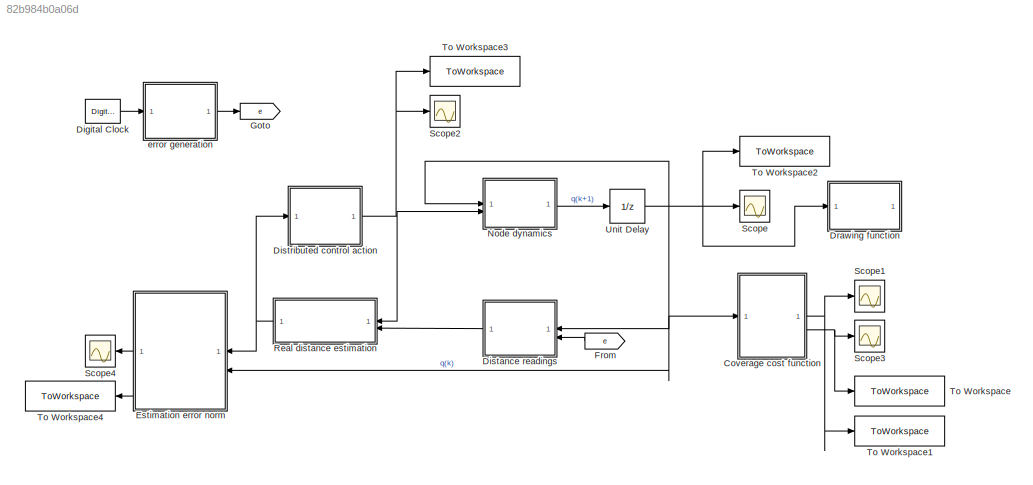
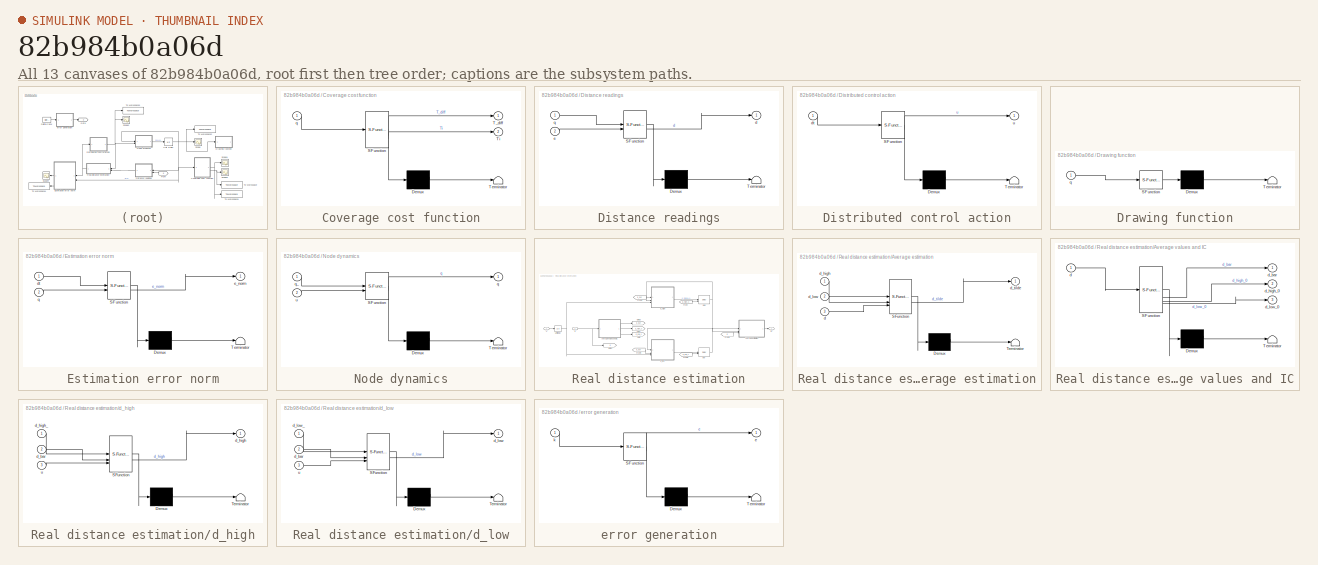
[diagram: thumbnail index - all 13 canvases of the model, root first then tree order]
MODEL slx_82b984b0a06d
KIND model
CONFIG AbsTol = auto
CONFIG EnableMultiTasking = off
CONFIG FixedStep = 1
CONFIG MaxStep = auto
CONFIG MinStep = auto
CONFIG RelTol = 1e-3
CONFIG SampleTimeConstraint = Unconstrained
CONFIG SolverName = FixedStepAuto
CONFIG StartTime = 0.0
CONFIG StopTime = Tf
BLOCK [SubSystem] Coverage cost function
  ErrorFcn = Stateflow.Translate.translate
  PermitHierarchicalResolution = ExplicitOnly
  SFBlockType = MATLAB Function
  TreatAsAtomicUnit = on
BLOCK [Demux] Coverage cost function/ Demux 
  Outputs = 1
BLOCK [S-Function] Coverage cost function/ SFunction 
  EnableBusSupport = on
  FunctionName = sf_sfun
  Parameters = T_star,lambda,n
  PortCounts = [1 3]
  SFcnIsStateOwnerBlock = off
  SFunctionDeploymentMode = off
  Tag = Stateflow S-Function 9
BLOCK [Terminator] Coverage cost function/ Terminator 
BLOCK [Outport] Coverage cost function/T_diff
BLOCK [Outport] Coverage cost function/Ti
  Port = 2
BLOCK [Inport] Coverage cost function/q
BLOCK [DigitalClock] Digital Clock
BLOCK [SubSystem] Distance readings
  ErrorFcn = Stateflow.Translate.translate
  PermitHierarchicalResolution = ExplicitOnly
  SFBlockType = MATLAB Function
  TreatAsAtomicUnit = on
BLOCK [Demux] Distance readings/ Demux 
  Outputs = 1
BLOCK [S-Function] Distance readings/ SFunction 
  EnableBusSupport = on
  FunctionName = sf_sfun
  Parameters = n,update_step
  PortCounts = [2 2]
  SFcnIsStateOwnerBlock = off
  SFunctionDeploymentMode = off
  Tag = Stateflow S-Function 4
BLOCK [Terminator] Distance readings/ Terminator 
BLOCK [Outport] Distance readings/d
BLOCK [Inport] Distance readings/e
  Port = 2
BLOCK [Inport] Distance readings/q
BLOCK [SubSystem] Distributed control action
  ErrorFcn = Stateflow.Translate.translate
  PermitHierarchicalResolution = ExplicitOnly
  SFBlockType = MATLAB Function
  TreatAsAtomicUnit = on
BLOCK [Demux] Distributed control action/ Demux 
  Outputs = 1
BLOCK [S-Function] Distributed control action/ SFunction 
  EnableBusSupport = on
  FunctionName = sf_sfun
  Parameters = eta,lambda,n,order_preservation
  PortCounts = [1 2]
  SFcnIsStateOwnerBlock = off
  SFunctionDeploymentMode = off
  Tag = Stateflow S-Function 1
BLOCK [Terminator] Distributed control action/ Terminator 
BLOCK [Inport] Distributed control action/dt
BLOCK [Outport] Distributed control action/u
BLOCK [SubSystem] Drawing function
  ErrorFcn = Stateflow.Translate.translate
  PermitHierarchicalResolution = ExplicitOnly
  SFBlockType = MATLAB Function
  TreatAsAtomicUnit = on
BLOCK [Demux] Drawing function/ Demux 
  Outputs = 1
BLOCK [S-Function] Drawing function/ SFunction 
  EnableBusSupport = on
  FunctionName = sf_sfun
  PortCounts = [1 1]
  SFcnIsStateOwnerBlock = off
  SFunctionDeploymentMode = off
  Tag = Stateflow S-Function 10
BLOCK [Terminator] Drawing function/ Terminator 
BLOCK [Inport] Drawing function/q
BLOCK [SubSystem] Estimation error norm
  ErrorFcn = Stateflow.Translate.translate
  PermitHierarchicalResolution = ExplicitOnly
  SFBlockType = MATLAB Function
  TreatAsAtomicUnit = on
BLOCK [Demux] Estimation error norm/ Demux 
  Outputs = 1
BLOCK [S-Function] Estimation error norm/ SFunction 
  EnableBusSupport = on
  FunctionName = sf_sfun
  Parameters = n
  PortCounts = [2 2]
  SFcnIsStateOwnerBlock = off
  SFunctionDeploymentMode = off
  Tag = Stateflow S-Function 5
BLOCK [Terminator] Estimation error norm/ Terminator 
BLOCK [Inport] Estimation error norm/dt
BLOCK [Outport] Estimation error norm/e_norm
BLOCK [Inport] Estimation error norm/q
  Port = 2
BLOCK [From] From
  GotoTag = e
  NameLocation = top
BLOCK [Goto] Goto
  GotoTag = e
BLOCK [SubSystem] Node dynamics
  ErrorFcn = Stateflow.Translate.translate
  PermitHierarchicalResolution = ExplicitOnly
  SFBlockType = MATLAB Function
  TreatAsAtomicUnit = on
BLOCK [Demux] Node dynamics/ Demux 
  Outputs = 1
BLOCK [S-Function] Node dynamics/ SFunction 
  EnableBusSupport = on
  FunctionName = sf_sfun
  PortCounts = [2 2]
  SFcnIsStateOwnerBlock = off
  SFunctionDeploymentMode = off
  Tag = Stateflow S-Function 2
BLOCK [Terminator] Node dynamics/ Terminator 
BLOCK [Outport] Node dynamics/q
BLOCK [Inport] Node dynamics/q_
BLOCK [Inport] Node dynamics/u
  Port = 2
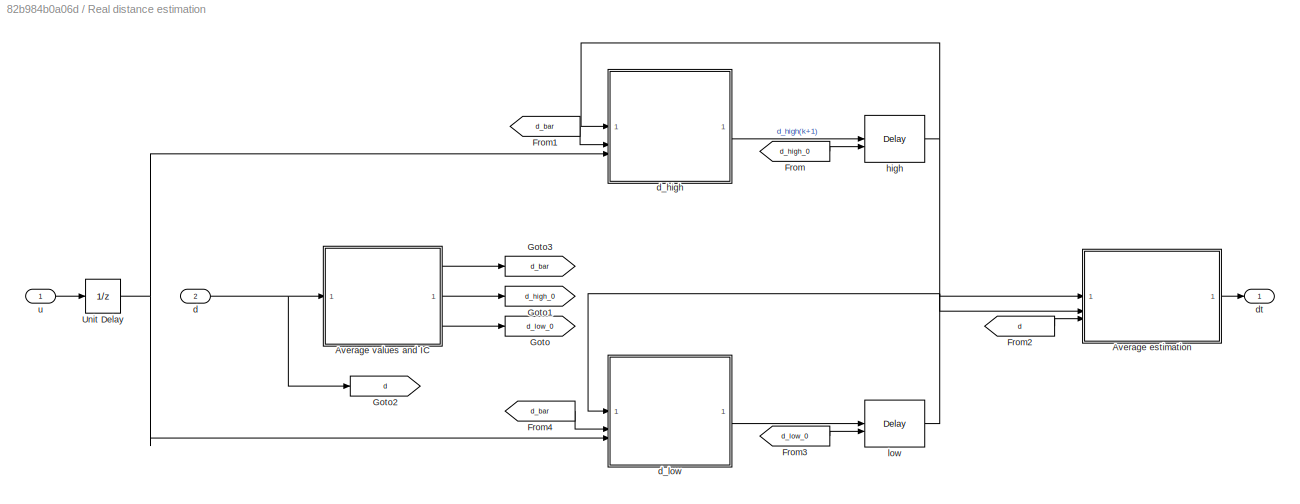
BLOCK [SubSystem] Real distance estimation
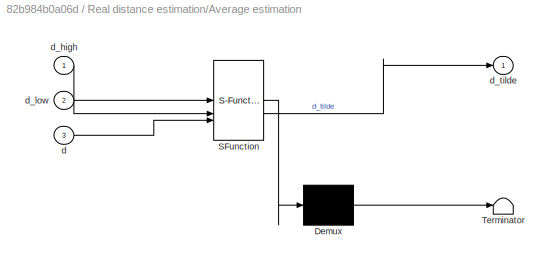
BLOCK [SubSystem] Real distance estimation/Average estimation
  ErrorFcn = Stateflow.Translate.translate
  PermitHierarchicalResolution = ExplicitOnly
  SFBlockType = MATLAB Function
  TreatAsAtomicUnit = on
BLOCK [Demux] Real distance estimation/Average estimation/ Demux 
  Outputs = 1
BLOCK [S-Function] Real distance estimation/Average estimation/ SFunction 
  EnableBusSupport = on
  FunctionName = sf_sfun
  Parameters = n
  PortCounts = [3 2]
  SFcnIsStateOwnerBlock = off
  SFunctionDeploymentMode = off
  Tag = Stateflow S-Function 13
BLOCK [Terminator] Real distance estimation/Average estimation/ Terminator 
BLOCK [Inport] Real distance estimation/Average estimation/d
  Port = 3
BLOCK [Inport] Real distance estimation/Average estimation/d_high
BLOCK [Inport] Real distance estimation/Average estimation/d_low
  Port = 2
BLOCK [Outport] Real distance estimation/Average estimation/d_tilde
BLOCK [SubSystem] Real distance estimation/Average values and IC
  ErrorFcn = Stateflow.Translate.translate
  PermitHierarchicalResolution = ExplicitOnly
  SFBlockType = MATLAB Function
  TreatAsAtomicUnit = on
BLOCK [Demux] Real distance estimation/Average values and IC/ Demux 
  Outputs = 1
BLOCK [S-Function] Real distance estimation/Average values and IC/ SFunction 
  EnableBusSupport = on
  FunctionName = sf_sfun
  Parameters = delta_bar
  PortCounts = [1 4]
  SFcnIsStateOwnerBlock = off
  SFunctionDeploymentMode = off
  Tag = Stateflow S-Function 14
BLOCK [Terminator] Real distance estimation/Average values and IC/ Terminator 
BLOCK [Inport] Real distance estimation/Average values and IC/d
BLOCK [Outport] Real distance estimation/Average values and IC/d_bar
BLOCK [Outport] Real distance estimation/Average values and IC/d_high_0
  Port = 2
BLOCK [Outport] Real distance estimation/Average values and IC/d_low_0
  Port = 3
BLOCK [From] Real distance estimation/From
  GotoTag = d_high_0
BLOCK [From] Real distance estimation/From1
  GotoTag = d_bar
BLOCK [From] Real distance estimation/From2
  GotoTag = d
BLOCK [From] Real distance estimation/From3
  GotoTag = d_low_0
BLOCK [From] Real distance estimation/From4
  GotoTag = d_bar
BLOCK [Goto] Real distance estimation/Goto
  GotoTag = d_low_0
BLOCK [Goto] Real distance estimation/Goto1
  GotoTag = d_high_0
BLOCK [Goto] Real distance estimation/Goto2
  GotoTag = d
BLOCK [Goto] Real distance estimation/Goto3
  GotoTag = d_bar
BLOCK [UnitDelay] Real distance estimation/Unit Delay
  HasFrameUpgradeWarning = on
  SampleTime = -1
BLOCK [Inport] Real distance estimation/d
  Port = 2
BLOCK [SubSystem] Real distance estimation/d_high
  ErrorFcn = Stateflow.Translate.translate
  PermitHierarchicalResolution = ExplicitOnly
  SFBlockType = MATLAB Function
  TreatAsAtomicUnit = on
BLOCK [Demux] Real distance estimation/d_high/ Demux 
  Outputs = 1
BLOCK [S-Function] Real distance estimation/d_high/ SFunction 
  EnableBusSupport = on
  FunctionName = sf_sfun
  Parameters = delta_bar,n
  PortCounts = [3 2]
  SFcnIsStateOwnerBlock = off
  SFunctionDeploymentMode = off
  Tag = Stateflow S-Function 16
BLOCK [Terminator] Real distance estimation/d_high/ Terminator 
BLOCK [Inport] Real distance estimation/d_high/d_bar
  Port = 2
BLOCK [Outport] Real distance estimation/d_high/d_high
BLOCK [Inport] Real distance estimation/d_high/d_high_
BLOCK [Inport] Real distance estimation/d_high/u
  Port = 3
BLOCK [SubSystem] Real distance estimation/d_low
  ErrorFcn = Stateflow.Translate.translate
  PermitHierarchicalResolution = ExplicitOnly
  SFBlockType = MATLAB Function
  TreatAsAtomicUnit = on
BLOCK [Demux] Real distance estimation/d_low/ Demux 
  Outputs = 1
BLOCK [S-Function] Real distance estimation/d_low/ SFunction 
  EnableBusSupport = on
  FunctionName = sf_sfun
  Parameters = delta_bar,n
  PortCounts = [3 2]
  SFcnIsStateOwnerBlock = off
  SFunctionDeploymentMode = off
  Tag = Stateflow S-Function 17
BLOCK [Terminator] Real distance estimation/d_low/ Terminator 
BLOCK [Inport] Real distance estimation/d_low/d_bar
  Port = 2
BLOCK [Outport] Real distance estimation/d_low/d_low
BLOCK [Inport] Real distance estimation/d_low/d_low_
BLOCK [Inport] Real distance estimation/d_low/u
  Port = 3
BLOCK [Outport] Real distance estimation/dt
BLOCK [Delay] Real distance estimation/high
  DelayLength = 1
  InitialConditionSource = Input port
  InputPortMap = u0,p4
BLOCK [Delay] Real distance estimation/low
  DelayLength = 1
  InitialConditionSource = Input port
  InputPortMap = u0,p4
BLOCK [Inport] Real distance estimation/u
BLOCK [Scope] Scope
  Floating = off
  NumInputPorts = 1
  ScopeSpecificationString = Simulink.scopes.TimeScopeBlockCfg('CurrentConfiguration', extmgr.ConfigurationSet(extmgr.Configuration('Core','General UI',true),extmgr.Configuration('Core','Source UI',true),extmgr.Configuration('Sources','WiredSimulink',true),extmgr.Configuration('Visuals','Time Domain',true,'SerializedDisplays',{struct('MinYLimReal','-2.67478','MaxYLimReal','17.37039','YLabelReal','','MinYLimMag','0.00000','Max...<+1644ch>
BLOCK [Scope] Scope1
  Floating = off
  NumInputPorts = 1
  ScopeSpecificationString = Simulink.scopes.TimeScopeBlockCfg('CurrentConfiguration', extmgr.ConfigurationSet(extmgr.Configuration('Core','General UI',true),extmgr.Configuration('Core','Source UI',true),extmgr.Configuration('Sources','WiredSimulink',true,'DataLoggingVariableName','ScopeData1'),extmgr.Configuration('Visuals','Time Domain',true,'SerializedDisplays',{struct('MinYLimReal','-0.05549','MaxYLimReal','0.4967','YLabe...<+1546ch>
BLOCK [Scope] Scope2
  Floating = off
  NumInputPorts = 1
  ScopeSpecificationString = Simulink.scopes.TimeScopeBlockCfg('CurrentConfiguration', extmgr.ConfigurationSet(extmgr.Configuration('Core','General UI',true),extmgr.Configuration('Core','Source UI',true),extmgr.Configuration('Sources','WiredSimulink',true,'DataLoggingVariableName','ScopeData2'),extmgr.Configuration('Visuals','Time Domain',true,'SerializedDisplays',{struct('MinYLimReal','-0.45829','MaxYLimReal','0.1331','YLabe...<+1642ch>
BLOCK [Scope] Scope3
  Floating = off
  NumInputPorts = 1
  ScopeSpecificationString = Simulink.scopes.TimeScopeBlockCfg('CurrentConfiguration', extmgr.ConfigurationSet(extmgr.Configuration('Core','General UI',true),extmgr.Configuration('Core','Source UI',true),extmgr.Configuration('Sources','WiredSimulink',true,'DataLoggingVariableName','ScopeData1'),extmgr.Configuration('Visuals','Time Domain',true,'SerializedDisplays',{struct('MinYLimReal','-0.04855','MaxYLimReal','0.70037','YLab...<+1668ch>
BLOCK [Scope] Scope4
  Floating = off
  NameLocation = top
  NumInputPorts = 1
  ScopeSpecificationString = Simulink.scopes.TimeScopeBlockCfg('CurrentConfiguration', extmgr.ConfigurationSet(extmgr.Configuration('Core','General UI',true),extmgr.Configuration('Core','Source UI',true),extmgr.Configuration('Sources','WiredSimulink',true,'DataLoggingVariableName','ScopeData3'),extmgr.Configuration('Visuals','Time Domain',true,'SerializedDisplays',{struct('MinYLimReal','-0.033','MaxYLimReal','0.58129','YLabel...<+1540ch>
BLOCK [ToWorkspace] To Workspace
  FixptAsFi = on
  MaxDataPoints = inf
  SampleTime = -1
  SaveFormat = Timeseries
  VariableName = Ti
BLOCK [ToWorkspace] To Workspace1
  FixptAsFi = on
  MaxDataPoints = inf
  SampleTime = -1
  SaveFormat = Timeseries
  VariableName = T_diff
BLOCK [ToWorkspace] To Workspace2
  FixptAsFi = on
  MaxDataPoints = inf
  SampleTime = -1
  SaveFormat = Timeseries
  VariableName = q
BLOCK [ToWorkspace] To Workspace3
  FixptAsFi = on
  MaxDataPoints = inf
  SampleTime = -1
  SaveFormat = Timeseries
  VariableName = u
BLOCK [ToWorkspace] To Workspace4
  FixptAsFi = on
  MaxDataPoints = inf
  NameLocation = top
  SampleTime = -1
  SaveFormat = Timeseries
  VariableName = est_err
BLOCK [UnitDelay] Unit Delay
  HasFrameUpgradeWarning = on
  InitialCondition = q0
  SampleTime = -1
BLOCK [SubSystem] error generation
  ErrorFcn = Stateflow.Translate.translate
  PermitHierarchicalResolution = ExplicitOnly
  SFBlockType = MATLAB Function
  TreatAsAtomicUnit = on
BLOCK [Demux] error generation/ Demux 
  Outputs = 1
BLOCK [S-Function] error generation/ SFunction 
  EnableBusSupport = on
  FunctionName = sf_sfun
  Parameters = delta,n,omega,phi
  PortCounts = [1 2]
  SFcnIsStateOwnerBlock = off
  SFunctionDeploymentMode = off
  Tag = Stateflow S-Function 3
BLOCK [Terminator] error generation/ Terminator 
BLOCK [Outport] error generation/e
BLOCK [Inport] error generation/k
NET Coverage cost function:1 -> Scope1:1, To Workspace1:1
NET Coverage cost function:2 -> Scope3:1, To Workspace:1
LINE Digital Clock:1 -> error generation:1
LINE Distance readings:1 -> Real distance estimation:2
NET Distributed control action:1 -> Node dynamics:2, Real distance estimation:1, Scope2:1, To Workspace3:1
NET Estimation error norm:1 -> Scope4:1, To Workspace4:1
LINE From:1 -> Distance readings:2
LINE Node dynamics:1 -> Unit Delay:1
LINE Real distance estimation/Average estimation:1 -> Real distance estimation/dt:1
LINE Real distance estimation/Average values and IC:1 -> Real distance estimation/Goto3:1
LINE Real distance estimation/Average values and IC:2 -> Real distance estimation/Goto1:1
LINE Real distance estimation/Average values and IC:3 -> Real distance estimation/Goto:1
LINE Real distance estimation/From1:1 -> Real distance estimation/d_high:2
LINE Real distance estimation/From2:1 -> Real distance estimation/Average estimation:3
LINE Real distance estimation/From3:1 -> Real distance estimation/low:2
LINE Real distance estimation/From4:1 -> Real distance estimation/d_low:2
LINE Real distance estimation/From:1 -> Real distance estimation/high:2
NET Real distance estimation/Unit Delay:1 -> Real distance estimation/d_high:3, Real distance estimation/d_low:3
NET Real distance estimation/d:1 -> Real distance estimation/Average values and IC:1, Real distance estimation/Goto2:1
LINE Real distance estimation/d_high:1 -> Real distance estimation/high:1
LINE Real distance estimation/d_low:1 -> Real distance estimation/low:1
NET Real distance estimation/high:1 -> Real distance estimation/Average estimation:1, Real distance estimation/d_high:1
NET Real distance estimation/low:1 -> Real distance estimation/Average estimation:2, Real distance estimation/d_low:1
LINE Real distance estimation/u:1 -> Real distance estimation/Unit Delay:1
NET Real distance estimation:1 -> Distributed control action:1, Estimation error norm:1
NET Unit Delay:1 -> Coverage cost function:1, Distance readings:1, Drawing function:1, Estimation error norm:2, Node dynamics:1, Scope:1, To Workspace2:1
LINE error generation:1 -> Goto:1
note: NET lines group one-source signal fan-out (src -> all destinations, sorted); 1:1 wires keep LINE
CHART Real distance estimation/d_high states=1 transitions=1
  STATE_LABEL 'eML_blk_kernel()'
  STATE_LABEL 'SCRIPT:\nfunction d_high = fcn(d_high_, d_bar, u, delta_bar,n)\n\n    d_high = zeros(n,n);\n\n    for i=1:n\n        j = previous_i(i,n);\n        d_high(i,j) = min([d_bar(i,j) + delta_bar(i,j); d_high_(i,j) + u(j) - u(i)]);\n\n        j = next_i(i,n);\n        d_high(i,j) = min([d_bar(i,j) + delta_bar(i,j); d_high_(i,j) + u(j) - u(i)]);\n    end'
CHART Real distance estimation/d_low states=1 transitions=1
  STATE_LABEL 'eML_blk_kernel()'
  STATE_LABEL 'SCRIPT:\nfunction d_low = fcn(d_low_, d_bar, u, delta_bar,n)\n\n    d_low = zeros(n,n);\n\n    for i=1:n\n        j = previous_i(i,n);\n        d_low(i,j) = max([d_bar(i,j) - delta_bar(i,j); d_low_(i,j) + u(j) - u(i)]);\n\n        j = next_i(i,n);\n        d_low(i,j) = max([d_bar(i,j) - delta_bar(i,j); d_low_(i,j) + u(j) - u(i)]);\n    end'
CHART Distributed control action states=1 transitions=1
  STATE_LABEL 'eML_blk_kernel()'
  STATE_LABEL "SCRIPT:\nfunction u = fcn(dt, eta, lambda,n,order_preservation)\n    ut = zeros(n,1);\n    for i=1:n\n\n        ut(i) = eta(i)*( ...\n                (lambda(previous_i(i,n)) + lambda(i))*dt(i, next_i(i,n)) + ...\n                (lambda(i) + lambda(next_i(i,n)))*dt(i,previous_i(i,n))...\n                );\n    end\n\n    % saturation of u_tilde\n    if order_preservation\n        u = lambda'.*max(min(ut, 1),...<+66ch>"
CHART Node dynamics states=1 transitions=1
  STATE_LABEL 'eML_blk_kernel()'
  STATE_LABEL 'SCRIPT:\nfunction q = fcn(q_, u)\n\n    q = (q_ + u);'
CHART error generation states=1 transitions=1
  STATE_LABEL 'eML_blk_kernel()'
  STATE_LABEL 'SCRIPT:\nfunction e = fcn(k,omega, phi, delta,n)\n    e = zeros(n,n);\n\n    for i=1:n\n        j = previous_i(i,n);\n        e(i,j) = (1+3*sin(omega(i)*k + 10*(j-i)*phi(i)))*delta(i)/4;\n\n        j = next_i(i,n);\n        e(i,j) = (1+3*sin(omega(i)*k + 10*(j-i)*phi(i)))*delta(i)/4;    \n    end'
CHART Distance readings states=1 transitions=1
  STATE_LABEL 'eML_blk_kernel()'
  STATE_LABEL 'SCRIPT:\nfunction d = fcn(q,e,n,update_step)\n        \n        persistent counter;\n        persistent last_d;\n        \n        if isempty(counter)\n            counter = 1;\n        end\n        if isempty(last_d)\n            last_d = zeros(n,n);\n        end\n\n        counter = counter + 1;\n\n        if mod(counter,update_step) == 0\n       \n            for i=1:n\n            \n                j = previous_...<+264ch>'
CHART Estimation error norm states=1 transitions=1
  STATE_LABEL 'eML_blk_kernel()'
  STATE_LABEL 'SCRIPT:\nfunction e_norm = fcn(dt, q, n)\n\n    real_distance = zeros(n,n);\n\n    for i=1:n\n        \n        j = previous_i(i,n);\n        real_distance(i, j) = -circular_distance(q(i), q(j));\n\n        j = next_i(i,n);\n        real_distance(i, j) = circular_distance(q(i), q(j));\n    end\n\n    e_norm=norm(real_distance-dt);'
CHART Coverage cost function states=1 transitions=1
  STATE_LABEL 'eML_blk_kernel()'
  STATE_LABEL 'SCRIPT:\nfunction [T_diff, Ti] = fcn(q, lambda, T_star, n)\n\n\n    max_min_time = -Inf;\n\n    for s = linspace(0,2*pi,1000)\n        min_time = Inf;\n\n        for i=1:n\n\n            arrival_time = (circular_distance(q(i),s))/lambda(i);\n            if(arrival_time < min_time)\n                min_time = arrival_time;\n            end\n\n        end\n\n        if(min_time > max_min_time)\n            max_min_tim...<+226ch>'
CHART Drawing function states=1 transitions=1
  STATE_LABEL 'eML_blk_kernel()'
  STATE_LABEL "SCRIPT:\nfunction fcn(q)\n\n    x = cos(q);\n    y = sin(q);\n\n    persistent h;\n    if isempty(h)\n        figure;\n        h = plot(x, y, 'ro');\n        axis equal;\n        axis([-1.5 1.5 -1.5 1.5]);\n        grid on;\n    else\n        set(h, 'XData', x, 'YData', y);\n        drawnow;\n    end"
CHART Real distance estimation/Average estimation states=1 transitions=1
  STATE_LABEL 'eML_blk_kernel()'
  STATE_LABEL 'SCRIPT:\nfunction d_tilde = fcn(d_high, d_low, d, n)\n\n    d_tilde = (d_high + d_low)/2;\n    \n    for i=1:n\n    \n        j = next_i(i,n);\n        if d_high(i,j)<d_low(i,j)\n            d_tilde(i,j) = d(i,j);\n        end\n    \n        j = previous_i(i,n);\n        if d_high(i,j)<d_low(i,j)\n            d_tilde(i,j) = d(i,j);\n        end\n    \n        \n    end\n\n'
CHART Real distance estimation/Average values and IC states=1 transitions=1
  STATE_LABEL 'eML_blk_kernel()'
  STATE_LABEL "SCRIPT:\nfunction [d_bar, d_high_0, d_low_0] = fcn(d,delta_bar)\n\n    \n    d_bar = (d - d')/2; \n\n    persistent flag;\n    persistent dh0;\n    persistent dl0;\n    \n    if isempty(flag)\n        \n        d_high_0 = d_bar + delta_bar;\n        d_low_0 = d_bar - delta_bar;\n        \n        dh0 = d_high_0;\n        dl0 = d_low_0;\n        \n        flag=1;\n    else\n        d_high_0 = dh0;\n        d_low_0 = dl...<+10ch>"
CHART  states=0 transitions=0
CHART  states=0 transitions=0
CHART  states=0 transitions=0
CHART  states=0 transitions=0
CHART  states=0 transitions=0
CHART  states=0 transitions=0
CHART  states=0 transitions=0
CHART  states=0 transitions=0
CHART  states=0 transitions=0
CHART  states=0 transitions=0
CHART  states=0 transitions=0
